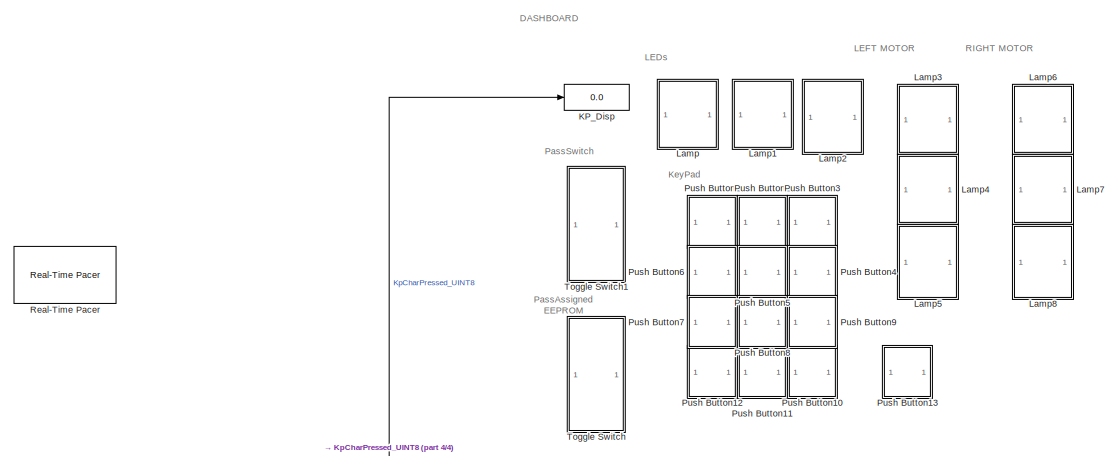
[diagram: root canvas - part 1/4, top center region]
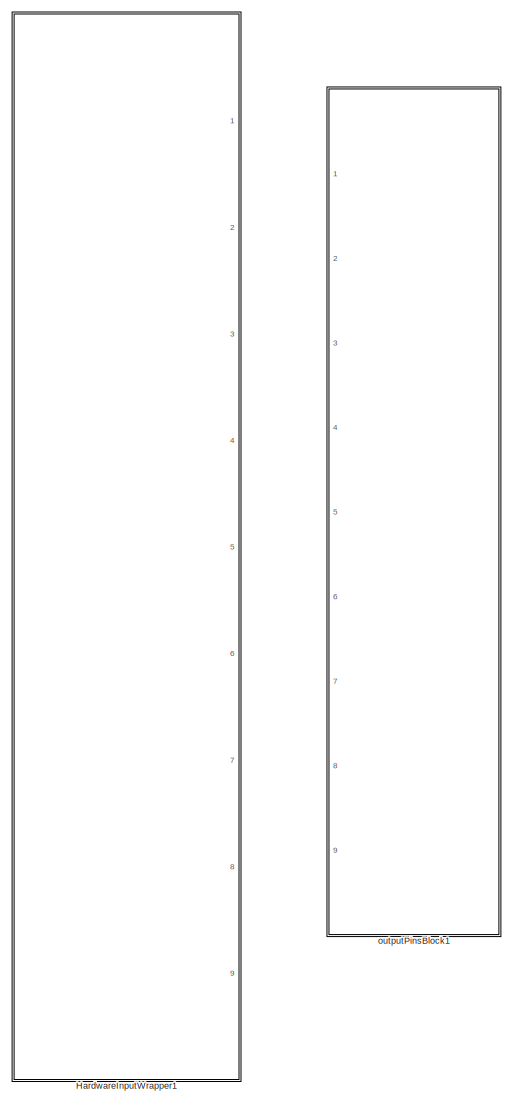
[diagram: root canvas - part 2/4, middle right region]
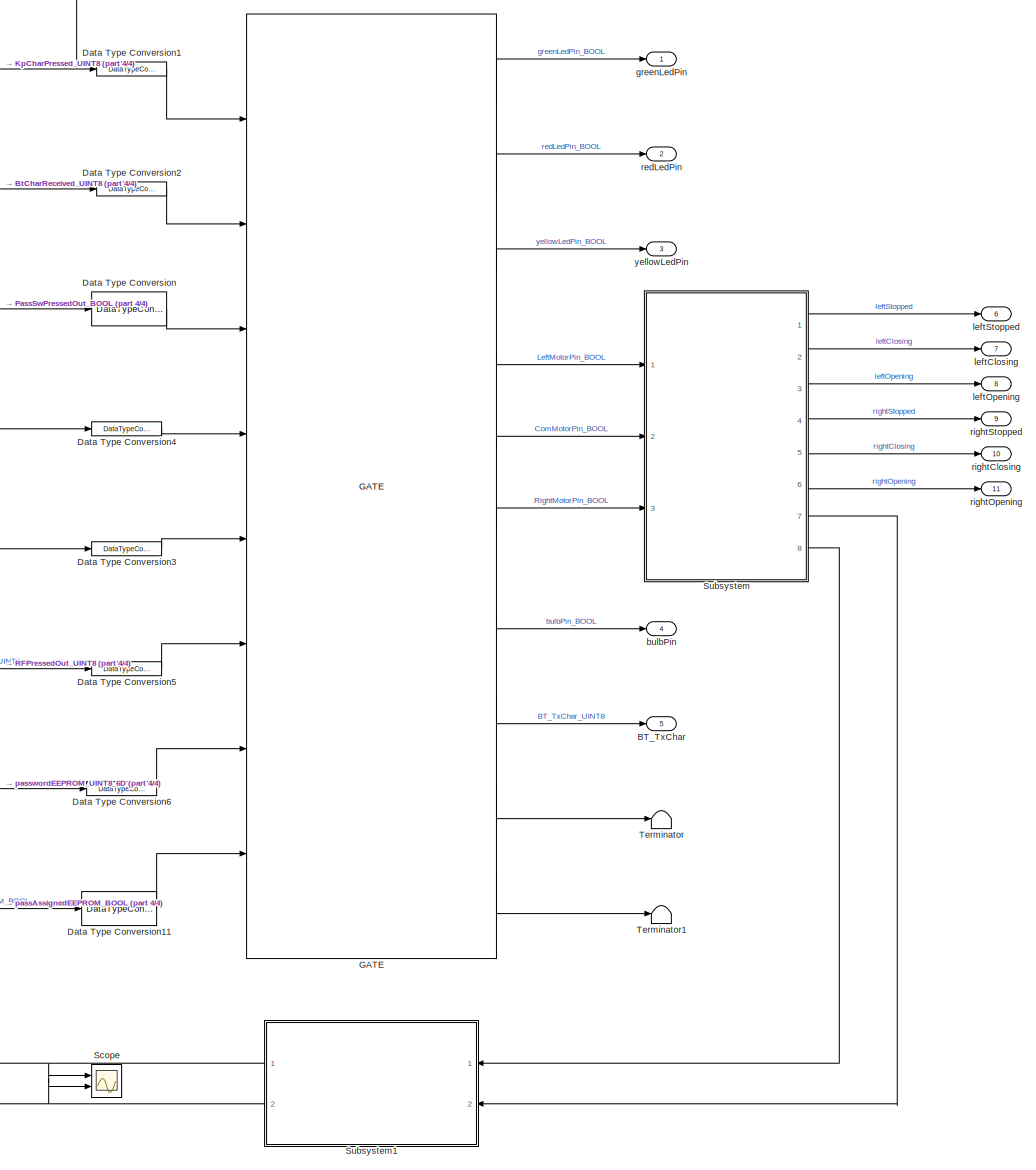
[diagram: root canvas - part 3/4, bottom center region]
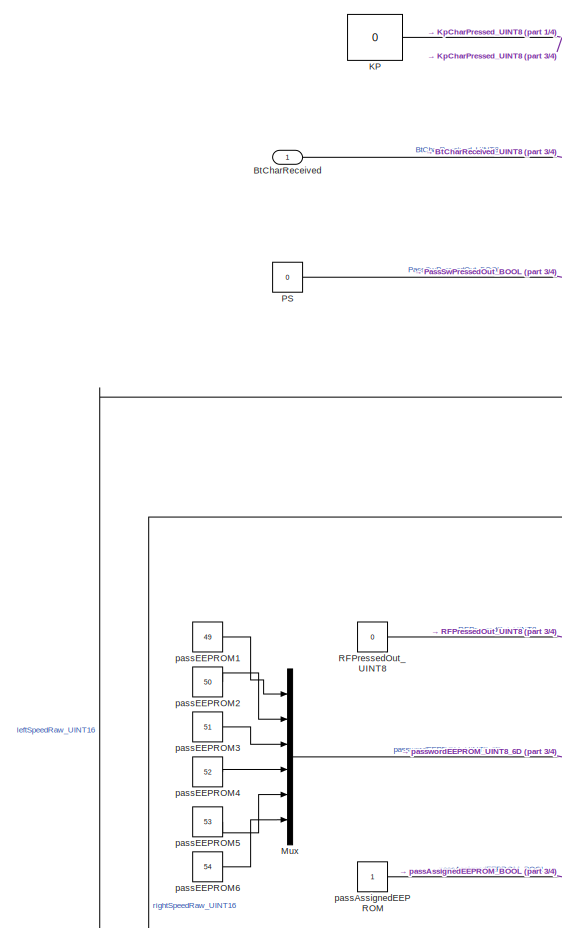
[diagram: root canvas - part 4/4, middle left region]
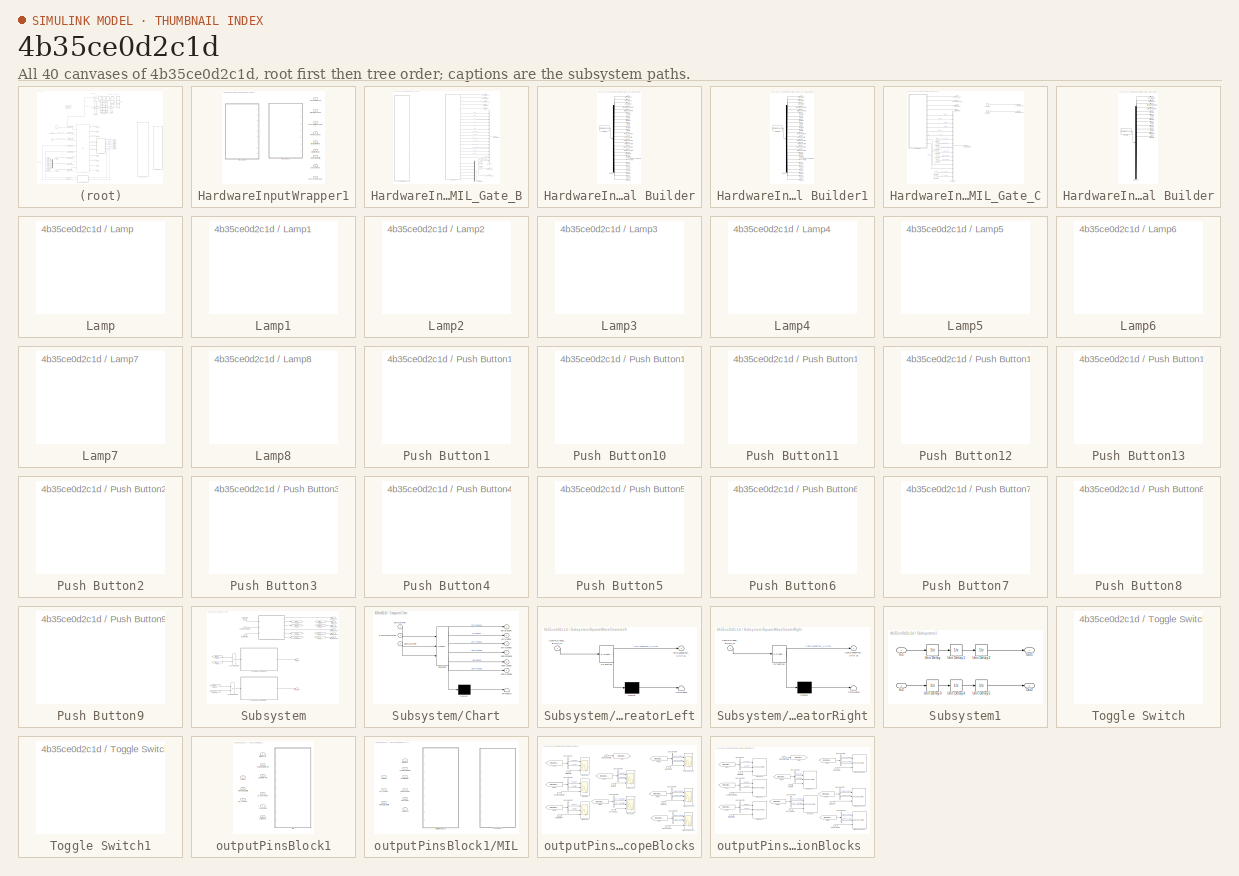
[diagram: thumbnail index - all 40 canvases of the model, root first then tree order]
MODEL slx_4b35ce0d2c1d
KIND model
CONFIG AbsTol = auto
CONFIG FixedStep = 0.001
CONFIG MaxStep = auto
CONFIG MinStep = auto
CONFIG RelTol = 1e-3
CONFIG SampleTimeConstraint = Unconstrained
CONFIG Solver = FixedStepDiscrete
CONFIG SolverMode = Auto
CONFIG SolverName = FixedStepDiscrete
CONFIG StartTime = 0.0
CONFIG StopTime = 120
BLOCK [Outport]  BT_TxChar
  IconDisplay = Port number
  Port = 5
BLOCK [Outport]  bulbPin
  IconDisplay = Port number
  Port = 4
BLOCK [Outport]  greenLedPin
  IconDisplay = Port number
BLOCK [Outport]  redLedPin
  IconDisplay = Port number
  Port = 2
BLOCK [Outport]  yellowLedPin
  IconDisplay = Port number
  Port = 3
BLOCK [Inport] BtCharReceived 
  IconDisplay = Port number
BLOCK [DataTypeConversion] Data Type Conversion
  OutDataTypeStr = boolean
  RndMeth = Floor
  SaturateOnIntegerOverflow = off
BLOCK [DataTypeConversion] Data Type Conversion1
  OutDataTypeStr = uint8
  RndMeth = Floor
  SaturateOnIntegerOverflow = off
BLOCK [DataTypeConversion] Data Type Conversion11
  OutDataTypeStr = boolean
  RndMeth = Floor
  SaturateOnIntegerOverflow = off
BLOCK [DataTypeConversion] Data Type Conversion2
  OutDataTypeStr = uint8
  RndMeth = Floor
  SaturateOnIntegerOverflow = off
BLOCK [DataTypeConversion] Data Type Conversion3
  OutDataTypeStr = uint16
  RndMeth = Floor
  SaturateOnIntegerOverflow = off
BLOCK [DataTypeConversion] Data Type Conversion4
  OutDataTypeStr = uint16
  RndMeth = Floor
  SaturateOnIntegerOverflow = off
BLOCK [DataTypeConversion] Data Type Conversion5
  OutDataTypeStr = uint8
  RndMeth = Floor
  SaturateOnIntegerOverflow = off
BLOCK [DataTypeConversion] Data Type Conversion6
  OutDataTypeStr = uint8
  RndMeth = Floor
  SaturateOnIntegerOverflow = off
BLOCK [Reference] GATE  REF=gate_V32_2016a_Lib_inf/GATE
  Ports = [8, 10]
  SourceBlock = gate_V32_2016a_Lib_inf/GATE
  SourceType = SubSystem
BLOCK [SubSystem] HardwareInputWrapper1
  Commented = on
  OverrideUsingVariant = MIL_VariantB
  Ports = [0, 9]
  RequestExecContextInheritance = off
  Variant = on
  VariantControl = Variant1
BLOCK [Outport] HardwareInputWrapper1/BtCharReceived
  IconDisplay = Port number
  Port = 2
BLOCK [Outport] HardwareInputWrapper1/KpCharPressed
  IconDisplay = Port number
BLOCK [SubSystem] HardwareInputWrapper1/MIL_Gate_B
  Ports = [0, 9]
  RequestExecContextInheritance = off
  Variant = off
  VariantControl = MIL_VariantB
BLOCK [Outport] HardwareInputWrapper1/MIL_Gate_B/BtCharReceived
  IconDisplay = Port number
  Port = 7
BLOCK [BusCreator] HardwareInputWrapper1/MIL_Gate_B/Bus Creator
  DisplayOption = bar
  InheritFromInputs = on
  Inputs = 16
  Ports = [16, 1]
BLOCK [Constant] HardwareInputWrapper1/MIL_Gate_B/Constant
  Value = 0
BLOCK [Constant] HardwareInputWrapper1/MIL_Gate_B/Constant1
  Value = 0
BLOCK [Constant] HardwareInputWrapper1/MIL_Gate_B/Constant2
  Value = 0
BLOCK [Outport] HardwareInputWrapper1/MIL_Gate_B/KpCharPressed
  IconDisplay = Port number
BLOCK [Mux] HardwareInputWrapper1/MIL_Gate_B/Mux
  DisplayOption = bar
  Inputs = 6
  Ports = [6, 1]
BLOCK [Outport] HardwareInputWrapper1/MIL_Gate_B/PassSwPressedOut
  IconDisplay = Port number
  Port = 2
BLOCK [Outport] HardwareInputWrapper1/MIL_Gate_B/RFPressedOut
  IconDisplay = Port number
  Port = 3
BLOCK [SubSystem] HardwareInputWrapper1/MIL_Gate_B/Signal Builder
  ClipboardFcn = sigbuilder_block('clipboard');
  CloseFcn = sigbuilder_block('close');
  ContinueFcn = sigbuilder_block('continue');
  CopyFcn = sigbuilder_block('copy');
  DeleteFcn = sigbuilder_block('delete');
  LoadFcn = sigbuilder_block('load');
  MaskHideContents = on
  ModelCloseFcn = sigbuilder_block('modelClose');
  NameChangeFcn = sigbuilder_block('namechange');
  OpenFcn = sigbuilder_block('open',[-1161 42 1012.8 468 ]);
  PauseFcn = sigbuilder_block('pause');
  Ports = [0, 26]
  PreSaveFcn = sigbuilder_block('preSave');
  RequestExecContextInheritance = off
  StartFcn = sigbuilder_block('start');
  StopFcn = sigbuilder_block('stop');
  Tag = STV Subsys
  Variant = off
BLOCK [Outport] HardwareInputWrapper1/MIL_Gate_B/Signal Builder/BulbMax
  IconDisplay = Port number
  Port = 18
  Tag = STV Outport
BLOCK [Outport] HardwareInputWrapper1/MIL_Gate_B/Signal Builder/BulbMin
  IconDisplay = Port number
  Port = 19
  Tag = STV Outport
BLOCK [Demux] HardwareInputWrapper1/MIL_Gate_B/Signal Builder/Demux
  Outputs = 26
  Ports = [1, 26]
  Tag = STV Demux
BLOCK [FromWorkspace] HardwareInputWrapper1/MIL_Gate_B/Signal Builder/FromWs
  OutputAfterFinalValue = Holding final value
  SampleTime = 0
  Tag = STV FromWs
  VariableName = tuvar
  ZeroCross = on
BLOCK [Outport] HardwareInputWrapper1/MIL_Gate_B/Signal Builder/GreenLedMax
  IconDisplay = Port number
  Port = 16
  Tag = STV Outport
BLOCK [Outport] HardwareInputWrapper1/MIL_Gate_B/Signal Builder/GreenLedMin
  IconDisplay = Port number
  Port = 17
  Tag = STV Outport
BLOCK [Outport] HardwareInputWrapper1/MIL_Gate_B/Signal Builder/Kp_input
  IconDisplay = Port number
  Tag = STV Outport
BLOCK [Outport] HardwareInputWrapper1/MIL_Gate_B/Signal Builder/MCMax
  IconDisplay = Port number
  Port = 10
  Tag = STV Outport
BLOCK [Outport] HardwareInputWrapper1/MIL_Gate_B/Signal Builder/MCMin
  IconDisplay = Port number
  Port = 11
  Tag = STV Outport
BLOCK [Outport] HardwareInputWrapper1/MIL_Gate_B/Signal Builder/MLMax
  IconDisplay = Port number
  Port = 6
  Tag = STV Outport
BLOCK [Outport] HardwareInputWrapper1/MIL_Gate_B/Signal Builder/MLMin
  IconDisplay = Port number
  Port = 7
  Tag = STV Outport
BLOCK [Outport] HardwareInputWrapper1/MIL_Gate_B/Signal Builder/MRMax
  IconDisplay = Port number
  Port = 8
  Tag = STV Outport
BLOCK [Outport] HardwareInputWrapper1/MIL_Gate_B/Signal Builder/MRMin
  IconDisplay = Port number
  Port = 9
  Tag = STV Outport
BLOCK [Outport] HardwareInputWrapper1/MIL_Gate_B/Signal Builder/Pass1
  IconDisplay = Port number
  Port = 21
  Tag = STV Outport
BLOCK [Outport] HardwareInputWrapper1/MIL_Gate_B/Signal Builder/Pass2
  IconDisplay = Port number
  Port = 22
  Tag = STV Outport
BLOCK [Outport] HardwareInputWrapper1/MIL_Gate_B/Signal Builder/Pass3
  IconDisplay = Port number
  Port = 23
  Tag = STV Outport
BLOCK [Outport] HardwareInputWrapper1/MIL_Gate_B/Signal Builder/Pass4
  IconDisplay = Port number
  Port = 24
  Tag = STV Outport
BLOCK [Outport] HardwareInputWrapper1/MIL_Gate_B/Signal Builder/Pass5
  IconDisplay = Port number
  Port = 25
  Tag = STV Outport
BLOCK [Outport] HardwareInputWrapper1/MIL_Gate_B/Signal Builder/Pass6
  IconDisplay = Port number
  Port = 26
  Tag = STV Outport
BLOCK [Outport] HardwareInputWrapper1/MIL_Gate_B/Signal Builder/PassAssignedEEPROM
  IconDisplay = Port number
  Port = 20
  Tag = STV Outport
BLOCK [Outport] HardwareInputWrapper1/MIL_Gate_B/Signal Builder/RF_input
  IconDisplay = Port number
  Port = 2
  Tag = STV Outport
BLOCK [Outport] HardwareInputWrapper1/MIL_Gate_B/Signal Builder/RedLedMax
  IconDisplay = Port number
  Port = 12
  Tag = STV Outport
BLOCK [Outport] HardwareInputWrapper1/MIL_Gate_B/Signal Builder/RedLedMin
  IconDisplay = Port number
  Port = 13
  Tag = STV Outport
BLOCK [Outport] HardwareInputWrapper1/MIL_Gate_B/Signal Builder/SW_input
  IconDisplay = Port number
  Port = 3
  Tag = STV Outport
BLOCK [Outport] HardwareInputWrapper1/MIL_Gate_B/Signal Builder/YellowLedMax
  IconDisplay = Port number
  Port = 14
  Tag = STV Outport
BLOCK [Outport] HardwareInputWrapper1/MIL_Gate_B/Signal Builder/YellowLedMin
  IconDisplay = Port number
  Port = 15
  Tag = STV Outport
BLOCK [Outport] HardwareInputWrapper1/MIL_Gate_B/Signal Builder/leftSpeedRaw
  IconDisplay = Port number
  Port = 5
  Tag = STV Outport
BLOCK [Outport] HardwareInputWrapper1/MIL_Gate_B/Signal Builder/rightSpeedRaw
  IconDisplay = Port number
  Port = 4
  Tag = STV Outport
BLOCK [SubSystem] HardwareInputWrapper1/MIL_Gate_B/Signal Builder1
  ClipboardFcn = sigbuilder_block('clipboard');
  CloseFcn = sigbuilder_block('close');
  Commented = on
  ContinueFcn = sigbuilder_block('continue');
  CopyFcn = sigbuilder_block('copy');
  DeleteFcn = sigbuilder_block('delete');
  LoadFcn = sigbuilder_block('load');
  MaskHideContents = on
  ModelCloseFcn = sigbuilder_block('modelClose');
  NameChangeFcn = sigbuilder_block('namechange');
  OpenFcn = sigbuilder_block('open',[-1139.4 30 1012.8 507 ]);
  PauseFcn = sigbuilder_block('pause');
  Ports = [0, 26]
  PreSaveFcn = sigbuilder_block('preSave');
  RequestExecContextInheritance = off
  StartFcn = sigbuilder_block('start');
  StopFcn = sigbuilder_block('stop');
  Tag = STV Subsys
  Variant = off
BLOCK [Outport] HardwareInputWrapper1/MIL_Gate_B/Signal Builder1/BulbMax
  IconDisplay = Port number
  Port = 18
  Tag = STV Outport
BLOCK [Outport] HardwareInputWrapper1/MIL_Gate_B/Signal Builder1/BulbMin
  IconDisplay = Port number
  Port = 19
  Tag = STV Outport
BLOCK [Demux] HardwareInputWrapper1/MIL_Gate_B/Signal Builder1/Demux
  Outputs = 26
  Ports = [1, 26]
  Tag = STV Demux
BLOCK [FromWorkspace] HardwareInputWrapper1/MIL_Gate_B/Signal Builder1/FromWs
  OutputAfterFinalValue = Holding final value
  SampleTime = 0
  Tag = STV FromWs
  VariableName = tuvar
  ZeroCross = on
BLOCK [Outport] HardwareInputWrapper1/MIL_Gate_B/Signal Builder1/GreenLedMax
  IconDisplay = Port number
  Port = 16
  Tag = STV Outport
BLOCK [Outport] HardwareInputWrapper1/MIL_Gate_B/Signal Builder1/GreenLedMin
  IconDisplay = Port number
  Port = 17
  Tag = STV Outport
BLOCK [Outport] HardwareInputWrapper1/MIL_Gate_B/Signal Builder1/Kp_input
  IconDisplay = Port number
  Tag = STV Outport
BLOCK [Outport] HardwareInputWrapper1/MIL_Gate_B/Signal Builder1/MCMax
  IconDisplay = Port number
  Port = 10
  Tag = STV Outport
BLOCK [Outport] HardwareInputWrapper1/MIL_Gate_B/Signal Builder1/MCMin
  IconDisplay = Port number
  Port = 11
  Tag = STV Outport
BLOCK [Outport] HardwareInputWrapper1/MIL_Gate_B/Signal Builder1/MLMax
  IconDisplay = Port number
  Port = 6
  Tag = STV Outport
BLOCK [Outport] HardwareInputWrapper1/MIL_Gate_B/Signal Builder1/MLMin
  IconDisplay = Port number
  Port = 7
  Tag = STV Outport
BLOCK [Outport] HardwareInputWrapper1/MIL_Gate_B/Signal Builder1/MRMax
  IconDisplay = Port number
  Port = 8
  Tag = STV Outport
BLOCK [Outport] HardwareInputWrapper1/MIL_Gate_B/Signal Builder1/MRMin
  IconDisplay = Port number
  Port = 9
  Tag = STV Outport
BLOCK [Outport] HardwareInputWrapper1/MIL_Gate_B/Signal Builder1/Pass1
  IconDisplay = Port number
  Port = 21
  Tag = STV Outport
BLOCK [Outport] HardwareInputWrapper1/MIL_Gate_B/Signal Builder1/Pass2
  IconDisplay = Port number
  Port = 22
  Tag = STV Outport
BLOCK [Outport] HardwareInputWrapper1/MIL_Gate_B/Signal Builder1/Pass3
  IconDisplay = Port number
  Port = 23
  Tag = STV Outport
BLOCK [Outport] HardwareInputWrapper1/MIL_Gate_B/Signal Builder1/Pass4
  IconDisplay = Port number
  Port = 24
  Tag = STV Outport
BLOCK [Outport] HardwareInputWrapper1/MIL_Gate_B/Signal Builder1/Pass5
  IconDisplay = Port number
  Port = 25
  Tag = STV Outport
BLOCK [Outport] HardwareInputWrapper1/MIL_Gate_B/Signal Builder1/Pass6
  IconDisplay = Port number
  Port = 26
  Tag = STV Outport
BLOCK [Outport] HardwareInputWrapper1/MIL_Gate_B/Signal Builder1/PassAssignedEEPROM
  IconDisplay = Port number
  Port = 20
  Tag = STV Outport
BLOCK [Outport] HardwareInputWrapper1/MIL_Gate_B/Signal Builder1/RF_input
  IconDisplay = Port number
  Port = 2
  Tag = STV Outport
BLOCK [Outport] HardwareInputWrapper1/MIL_Gate_B/Signal Builder1/RedLedMax
  IconDisplay = Port number
  Port = 12
  Tag = STV Outport
BLOCK [Outport] HardwareInputWrapper1/MIL_Gate_B/Signal Builder1/RedLedMin
  IconDisplay = Port number
  Port = 13
  Tag = STV Outport
BLOCK [Outport] HardwareInputWrapper1/MIL_Gate_B/Signal Builder1/SW_input
  IconDisplay = Port number
  Port = 3
  Tag = STV Outport
BLOCK [Outport] HardwareInputWrapper1/MIL_Gate_B/Signal Builder1/YellowLedMax
  IconDisplay = Port number
  Port = 14
  Tag = STV Outport
BLOCK [Outport] HardwareInputWrapper1/MIL_Gate_B/Signal Builder1/YellowLedMin
  IconDisplay = Port number
  Port = 15
  Tag = STV Outport
BLOCK [Outport] HardwareInputWrapper1/MIL_Gate_B/Signal Builder1/leftSpeedRaw
  IconDisplay = Port number
  Port = 5
  Tag = STV Outport
BLOCK [Outport] HardwareInputWrapper1/MIL_Gate_B/Signal Builder1/rightSpeedRaw
  IconDisplay = Port number
  Port = 4
  Tag = STV Outport
BLOCK [Outport] HardwareInputWrapper1/MIL_Gate_B/SimuOutputLimits
  IconDisplay = Port number
  Port = 6
BLOCK [Outport] HardwareInputWrapper1/MIL_Gate_B/leftCurrentRaw
  IconDisplay = Port number
  Port = 5
BLOCK [Outport] HardwareInputWrapper1/MIL_Gate_B/passAssignedOut
  IconDisplay = Port number
  Port = 9
BLOCK [Outport] HardwareInputWrapper1/MIL_Gate_B/passwordOut
  IconDisplay = Port number
  Port = 8
BLOCK [Outport] HardwareInputWrapper1/MIL_Gate_B/rightCurrentRaw
  IconDisplay = Port number
  Port = 4
BLOCK [SubSystem] HardwareInputWrapper1/MIL_Gate_C
  Ports = [0, 7]
  RequestExecContextInheritance = off
  Variant = off
  VariantControl = MIL_VariantC
BLOCK [Outport] HardwareInputWrapper1/MIL_Gate_C/BtCharReceived
  IconDisplay = Port number
  Port = 2
BLOCK [BusCreator] HardwareInputWrapper1/MIL_Gate_C/Bus Creator
  DisplayOption = bar
  InheritFromInputs = on
  Inputs = 16
  Ports = [16, 1]
BLOCK [Constant] HardwareInputWrapper1/MIL_Gate_C/Constant
  Value = 0
BLOCK [Constant] HardwareInputWrapper1/MIL_Gate_C/Constant1
  Value = 0
BLOCK [Constant] HardwareInputWrapper1/MIL_Gate_C/Constant2
  Value = 0
BLOCK [Constant] HardwareInputWrapper1/MIL_Gate_C/Constant3
  Value = 0
BLOCK [Constant] HardwareInputWrapper1/MIL_Gate_C/Constant4
  Value = 0
BLOCK [Constant] HardwareInputWrapper1/MIL_Gate_C/Constant5
  Value = 0
BLOCK [Constant] HardwareInputWrapper1/MIL_Gate_C/Constant6
  Value = 0
BLOCK [Constant] HardwareInputWrapper1/MIL_Gate_C/Constant7
  Value = 0
BLOCK [Constant] HardwareInputWrapper1/MIL_Gate_C/Constant8
  Value = 0
BLOCK [Constant] HardwareInputWrapper1/MIL_Gate_C/Constant9
  Value = 0
BLOCK [Outport] HardwareInputWrapper1/MIL_Gate_C/KpCharPressed
  IconDisplay = Port number
BLOCK [Outport] HardwareInputWrapper1/MIL_Gate_C/PassSwPressedOut
  IconDisplay = Port number
  Port = 3
BLOCK [Outport] HardwareInputWrapper1/MIL_Gate_C/RFPressedOut
  IconDisplay = Port number
  Port = 4
BLOCK [SubSystem] HardwareInputWrapper1/MIL_Gate_C/Signal Builder
  ClipboardFcn = sigbuilder_block('clipboard');
  CloseFcn = sigbuilder_block('close');
  ContinueFcn = sigbuilder_block('continue');
  CopyFcn = sigbuilder_block('copy');
  DeleteFcn = sigbuilder_block('delete');
  LoadFcn = sigbuilder_block('load');
  MaskHideContents = on
  ModelCloseFcn = sigbuilder_block('modelClose');
  NameChangeFcn = sigbuilder_block('namechange');
  OpenFcn = sigbuilder_block('open',[6 6 1012.5 507 ]);
  PauseFcn = sigbuilder_block('pause');
  Ports = [0, 12]
  PreSaveFcn = sigbuilder_block('preSave');
  RequestExecContextInheritance = off
  StartFcn = sigbuilder_block('start');
  StopFcn = sigbuilder_block('stop');
  Tag = STV Subsys
  Variant = off
BLOCK [Outport] HardwareInputWrapper1/MIL_Gate_C/Signal Builder/BulbMax
  IconDisplay = Port number
  Port = 11
  Tag = STV Outport
BLOCK [Outport] HardwareInputWrapper1/MIL_Gate_C/Signal Builder/BulbMin
  IconDisplay = Port number
  Port = 12
  Tag = STV Outport
BLOCK [Demux] HardwareInputWrapper1/MIL_Gate_C/Signal Builder/Demux
  Outputs = 12
  Ports = [1, 12]
  Tag = STV Demux
BLOCK [FromWorkspace] HardwareInputWrapper1/MIL_Gate_C/Signal Builder/FromWs
  SampleTime = 0
  Tag = STV FromWs
  VariableName = tuvar
  ZeroCross = on
BLOCK [Outport] HardwareInputWrapper1/MIL_Gate_C/Signal Builder/MCMax
  IconDisplay = Port number
  Port = 9
  Tag = STV Outport
BLOCK [Outport] HardwareInputWrapper1/MIL_Gate_C/Signal Builder/MCMin
  IconDisplay = Port number
  Port = 10
  Tag = STV Outport
BLOCK [Outport] HardwareInputWrapper1/MIL_Gate_C/Signal Builder/MLMax
  IconDisplay = Port number
  Port = 5
  Tag = STV Outport
BLOCK [Outport] HardwareInputWrapper1/MIL_Gate_C/Signal Builder/MLMin
  IconDisplay = Port number
  Port = 6
  Tag = STV Outport
BLOCK [Outport] HardwareInputWrapper1/MIL_Gate_C/Signal Builder/MRMax
  IconDisplay = Port number
  Port = 7
  Tag = STV Outport
BLOCK [Outport] HardwareInputWrapper1/MIL_Gate_C/Signal Builder/MRMin
  IconDisplay = Port number
  Port = 8
  Tag = STV Outport
BLOCK [Outport] HardwareInputWrapper1/MIL_Gate_C/Signal Builder/RF_input
  IconDisplay = Port number
  Tag = STV Outport
BLOCK [Outport] HardwareInputWrapper1/MIL_Gate_C/Signal Builder/SW_input
  IconDisplay = Port number
  Port = 2
  Tag = STV Outport
BLOCK [Outport] HardwareInputWrapper1/MIL_Gate_C/Signal Builder/leftSpeedRaw
  IconDisplay = Port number
  Port = 4
  Tag = STV Outport
BLOCK [Outport] HardwareInputWrapper1/MIL_Gate_C/Signal Builder/rightSpeedRaw
  IconDisplay = Port number
  Port = 3
  Tag = STV Outport
BLOCK [Outport] HardwareInputWrapper1/MIL_Gate_C/SimuOutputLimits
  IconDisplay = Port number
  Port = 7
BLOCK [Outport] HardwareInputWrapper1/MIL_Gate_C/leftCurrentRaw
  IconDisplay = Port number
  Port = 6
BLOCK [Outport] HardwareInputWrapper1/MIL_Gate_C/rightCurrentRaw
  IconDisplay = Port number
  Port = 5
BLOCK [Outport] HardwareInputWrapper1/PassSwPressedOut
  IconDisplay = Port number
  Port = 3
BLOCK [Outport] HardwareInputWrapper1/RFPressedOut
  IconDisplay = Port number
  Port = 6
BLOCK [Outport] HardwareInputWrapper1/SimuOutputLimits
  IconDisplay = Port number
  Port = 9
BLOCK [Outport] HardwareInputWrapper1/leftCurrentRaw
  IconDisplay = Port number
  Port = 5
BLOCK [Outport] HardwareInputWrapper1/passAssignedOut
  IconDisplay = Port number
  Port = 8
BLOCK [Outport] HardwareInputWrapper1/passwordOut
  IconDisplay = Port number
  Port = 7
BLOCK [Outport] HardwareInputWrapper1/rightCurrentRaw
  IconDisplay = Port number
  Port = 4
BLOCK [Constant] KP
  SampleTime = -1
  Value = 0
BLOCK [Display] KP_Disp
  Decimation = 1
  Format = decimal (Stored Integer)
  Ports = [1]
BLOCK [SubSystem] Lamp
  DialogController = hmiCreateDDGDialog
  IsWebBlock = on
  MaskHideContents = on
  Ports = []
  RequestExecContextInheritance = off
  Variant = off
BLOCK [SubSystem] Lamp1
  DialogController = hmiCreateDDGDialog
  IsWebBlock = on
  MaskHideContents = on
  Ports = []
  RequestExecContextInheritance = off
  Variant = off
BLOCK [SubSystem] Lamp2
  DialogController = hmiCreateDDGDialog
  IsWebBlock = on
  MaskHideContents = on
  Ports = []
  RequestExecContextInheritance = off
  Variant = off
BLOCK [SubSystem] Lamp3
  DialogController = hmiCreateDDGDialog
  IsWebBlock = on
  MaskHideContents = on
  Ports = []
  RequestExecContextInheritance = off
  Variant = off
BLOCK [SubSystem] Lamp4
  DialogController = hmiCreateDDGDialog
  IsWebBlock = on
  MaskHideContents = on
  Ports = []
  RequestExecContextInheritance = off
  Variant = off
BLOCK [SubSystem] Lamp5
  DialogController = hmiCreateDDGDialog
  IsWebBlock = on
  MaskHideContents = on
  Ports = []
  RequestExecContextInheritance = off
  Variant = off
BLOCK [SubSystem] Lamp6
  DialogController = hmiCreateDDGDialog
  IsWebBlock = on
  MaskHideContents = on
  Ports = []
  RequestExecContextInheritance = off
  Variant = off
BLOCK [SubSystem] Lamp7
  DialogController = hmiCreateDDGDialog
  IsWebBlock = on
  MaskHideContents = on
  Ports = []
  RequestExecContextInheritance = off
  Variant = off
BLOCK [SubSystem] Lamp8
  DialogController = hmiCreateDDGDialog
  IsWebBlock = on
  MaskHideContents = on
  Ports = []
  RequestExecContextInheritance = off
  Variant = off
BLOCK [Mux] Mux
  DisplayOption = bar
  Inputs = 6
  Ports = [6, 1]
BLOCK [Constant] PS
  Value = 0
BLOCK [SubSystem] Push Button1
  DialogController = hmiCreateDDGDialog
  IsWebBlock = on
  Ports = []
  RequestExecContextInheritance = off
  Variant = off
BLOCK [SubSystem] Push Button10
  DialogController = hmiCreateDDGDialog
  IsWebBlock = on
  Ports = []
  RequestExecContextInheritance = off
  Variant = off
BLOCK [SubSystem] Push Button11
  DialogController = hmiCreateDDGDialog
  IsWebBlock = on
  Ports = []
  RequestExecContextInheritance = off
  Variant = off
BLOCK [SubSystem] Push Button12
  DialogController = hmiCreateDDGDialog
  IsWebBlock = on
  Ports = []
  RequestExecContextInheritance = off
  Variant = off
BLOCK [SubSystem] Push Button13
  DialogController = hmiCreateDDGDialog
  IsWebBlock = on
  Ports = []
  RequestExecContextInheritance = off
  Variant = off
BLOCK [SubSystem] Push Button2
  DialogController = hmiCreateDDGDialog
  IsWebBlock = on
  Ports = []
  RequestExecContextInheritance = off
  Variant = off
BLOCK [SubSystem] Push Button3
  DialogController = hmiCreateDDGDialog
  IsWebBlock = on
  Ports = []
  RequestExecContextInheritance = off
  Variant = off
BLOCK [SubSystem] Push Button4
  DialogController = hmiCreateDDGDialog
  IsWebBlock = on
  Ports = []
  RequestExecContextInheritance = off
  Variant = off
BLOCK [SubSystem] Push Button5
  DialogController = hmiCreateDDGDialog
  IsWebBlock = on
  Ports = []
  RequestExecContextInheritance = off
  Variant = off
BLOCK [SubSystem] Push Button6
  DialogController = hmiCreateDDGDialog
  IsWebBlock = on
  Ports = []
  RequestExecContextInheritance = off
  Variant = off
BLOCK [SubSystem] Push Button7
  DialogController = hmiCreateDDGDialog
  IsWebBlock = on
  Ports = []
  RequestExecContextInheritance = off
  Variant = off
BLOCK [SubSystem] Push Button8
  DialogController = hmiCreateDDGDialog
  IsWebBlock = on
  Ports = []
  RequestExecContextInheritance = off
  Variant = off
BLOCK [SubSystem] Push Button9
  DialogController = hmiCreateDDGDialog
  IsWebBlock = on
  Ports = []
  RequestExecContextInheritance = off
  Variant = off
BLOCK [Constant] RFPressedOut_UINT8
  Value = 0
BLOCK [Reference] Real-Time Pacer  REF=realtime_pacer_lib/Real-Time Pacer
  Ports = []
  SourceBlock = realtime_pacer_lib/Real-Time Pacer
  SourceType = RealTime_Pacer
BLOCK [Scope] Scope
  NumInputPorts = 2
  Ports = [2]
  ScopeSpecificationString = Simulink.scopes.TimeScopeBlockCfg('CurrentConfiguration', extmgr.ConfigurationSet(extmgr.Configuration('Core','General UI',true),extmgr.Configuration('Core','Source UI',true),extmgr.Configuration('Sources','WiredSimulink',true,'DataLoggingVariableName','ScopeData1'),extmgr.Configuration('Visuals','Time Domain',true,'SerializedDisplays',{struct('MinYLimReal','-127.875','MaxYLimReal','1150.875','YLa...<+1535ch>
BLOCK [SubSystem] Subsystem
  Ports = [3, 8]
  RequestExecContextInheritance = off
  Variant = off
BLOCK [SubSystem] Subsystem/Chart
  ErrorFcn = Stateflow.Translate.translate
  PermitHierarchicalResolution = ExplicitOnly
  Ports = [3, 6]
  RequestExecContextInheritance = off
  SFBlockType = Chart
  TreatAsAtomicUnit = on
  Variant = off
BLOCK [Demux] Subsystem/Chart/ Demux 
  Outputs = 1
  Ports = [1, 1]
BLOCK [S-Function] Subsystem/Chart/ SFunction 
  EnableBusSupport = on
  FunctionName = sf_sfun
  PortCounts = [3 7]
  Ports = [3, 7]
  SFunctionDeploymentMode = off
  Tag = Stateflow S-Function TestHarness_inf 3
BLOCK [Terminator] Subsystem/Chart/ Terminator 
BLOCK [Inport] Subsystem/Chart/CommonMotorPin
  IconDisplay = Port number
  Port = 2
BLOCK [Outport] Subsystem/Chart/leftClosing
  IconDisplay = Port number
  Port = 2
BLOCK [Inport] Subsystem/Chart/leftMotorPin
  IconDisplay = Port number
BLOCK [Outport] Subsystem/Chart/leftOpening
  IconDisplay = Port number
  Port = 3
BLOCK [Outport] Subsystem/Chart/leftStopped
  IconDisplay = Port number
BLOCK [Outport] Subsystem/Chart/rightClosing
  IconDisplay = Port number
  Port = 5
BLOCK [Inport] Subsystem/Chart/rightMotorPin
  IconDisplay = Port number
  Port = 3
BLOCK [Outport] Subsystem/Chart/rightOpening
  IconDisplay = Port number
  Port = 6
BLOCK [Outport] Subsystem/Chart/rightStopped
  IconDisplay = Port number
  Port = 4
BLOCK [Inport] Subsystem/CommonMotorPin
  IconDisplay = Port number
  Port = 2
BLOCK [From] Subsystem/From1
  GotoTag = leftClosing
BLOCK [From] Subsystem/From10
  GotoTag = rightClosing
BLOCK [From] Subsystem/From11
  GotoTag = rightOpening
BLOCK [From] Subsystem/From2
  GotoTag = leftOpening
BLOCK [From] Subsystem/From4
  GotoTag = rightClosing
BLOCK [From] Subsystem/From5
  GotoTag = rightOpening
BLOCK [From] Subsystem/From7
  GotoTag = leftClosing
BLOCK [From] Subsystem/From8
  GotoTag = leftOpening
BLOCK [Goto] Subsystem/Goto1
  GotoTag = leftClosing
BLOCK [Goto] Subsystem/Goto2
  GotoTag = leftOpening
BLOCK [Goto] Subsystem/Goto4
  GotoTag = rightClosing
BLOCK [Goto] Subsystem/Goto5
  GotoTag = rightOpening
BLOCK [Inport] Subsystem/LeftMotorPin
  IconDisplay = Port number
BLOCK [Logic] Subsystem/Logical Operator
  AllPortsSameDT = off
  Operator = OR
  OutDataTypeStr = boolean
  Ports = [2, 1]
BLOCK [Logic] Subsystem/Logical Operator1
  AllPortsSameDT = off
  Operator = OR
  OutDataTypeStr = boolean
  Ports = [2, 1]
BLOCK [SubSystem] Subsystem/SquareWaveCreatorLeft
  ErrorFcn = Stateflow.Translate.translate
  PermitHierarchicalResolution = ExplicitOnly
  Ports = [1, 1]
  RequestExecContextInheritance = off
  SFBlockType = Chart
  TreatAsAtomicUnit = on
  Variant = off
BLOCK [Demux] Subsystem/SquareWaveCreatorLeft/ Demux 
  Outputs = 1
  Ports = [1, 1]
BLOCK [S-Function] Subsystem/SquareWaveCreatorLeft/ SFunction 
  EnableBusSupport = on
  FunctionName = sf_sfun
  PortCounts = [1 2]
  Ports = [1, 2]
  SFunctionDeploymentMode = off
  Tag = Stateflow S-Function TestHarness_inf 9
BLOCK [Terminator] Subsystem/SquareWaveCreatorLeft/ Terminator 
BLOCK [Inport] Subsystem/SquareWaveCreatorLeft/ControlSignal_BOOL_in
  IconDisplay = Port number
BLOCK [Outport] Subsystem/SquareWaveCreatorLeft/leftSpeedRaw_UINT16
  IconDisplay = Port number
BLOCK [SubSystem] Subsystem/SquareWaveCreatorRight
  ErrorFcn = Stateflow.Translate.translate
  PermitHierarchicalResolution = ExplicitOnly
  Ports = [1, 1]
  RequestExecContextInheritance = off
  SFBlockType = Chart
  TreatAsAtomicUnit = on
  Variant = off
BLOCK [Demux] Subsystem/SquareWaveCreatorRight/ Demux 
  Outputs = 1
  Ports = [1, 1]
BLOCK [S-Function] Subsystem/SquareWaveCreatorRight/ SFunction 
  EnableBusSupport = on
  FunctionName = sf_sfun
  PortCounts = [1 2]
  Ports = [1, 2]
  SFunctionDeploymentMode = off
  Tag = Stateflow S-Function TestHarness_inf 1
BLOCK [Terminator] Subsystem/SquareWaveCreatorRight/ Terminator 
BLOCK [Inport] Subsystem/SquareWaveCreatorRight/ControlSignal_BOOL_in
  IconDisplay = Port number
BLOCK [Outport] Subsystem/SquareWaveCreatorRight/rightSpeedRaw_UINT16
  IconDisplay = Port number
BLOCK [Outport] Subsystem/leftClosing
  IconDisplay = Port number
  Port = 2
BLOCK [Outport] Subsystem/leftCurr
  IconDisplay = Port number
  Port = 8
BLOCK [Outport] Subsystem/leftOpening
  IconDisplay = Port number
  Port = 3
BLOCK [Outport] Subsystem/leftStopped
  IconDisplay = Port number
BLOCK [Outport] Subsystem/rightClosing
  IconDisplay = Port number
  Port = 5
BLOCK [Outport] Subsystem/rightCurr
  IconDisplay = Port number
  Port = 7
BLOCK [Inport] Subsystem/rightMotorPin
  IconDisplay = Port number
  Port = 3
BLOCK [Outport] Subsystem/rightOpening
  IconDisplay = Port number
  Port = 6
BLOCK [Outport] Subsystem/rightStopped
  IconDisplay = Port number
  Port = 4
BLOCK [SubSystem] Subsystem1
  Ports = [2, 2]
  RequestExecContextInheritance = off
  Variant = off
BLOCK [Inport] Subsystem1/In1
  IconDisplay = Port number
BLOCK [Inport] Subsystem1/In2
  IconDisplay = Port number
  Port = 2
BLOCK [Outport] Subsystem1/Out1
  IconDisplay = Port number
BLOCK [Outport] Subsystem1/Out2
  IconDisplay = Port number
  Port = 2
BLOCK [UnitDelay] Subsystem1/Unit Delay
  InputProcessing = Elements as channels (sample based)
  SampleTime = -1
BLOCK [UnitDelay] Subsystem1/Unit Delay1
  InputProcessing = Elements as channels (sample based)
  SampleTime = -1
BLOCK [UnitDelay] Subsystem1/Unit Delay2
  InputProcessing = Elements as channels (sample based)
  SampleTime = -1
BLOCK [UnitDelay] Subsystem1/Unit Delay3
  InputProcessing = Elements as channels (sample based)
  SampleTime = -1
BLOCK [UnitDelay] Subsystem1/Unit Delay4
  InputProcessing = Elements as channels (sample based)
  SampleTime = -1
BLOCK [UnitDelay] Subsystem1/Unit Delay5
  InputProcessing = Elements as channels (sample based)
  SampleTime = -1
BLOCK [Terminator] Terminator
BLOCK [Terminator] Terminator1
BLOCK [SubSystem] Toggle Switch
  DialogController = hmiCreateDDGDialog
  IsWebBlock = on
  MaskHideContents = on
  Ports = []
  RequestExecContextInheritance = off
  Variant = off
BLOCK [SubSystem] Toggle Switch1
  DialogController = hmiCreateDDGDialog
  IsWebBlock = on
  MaskHideContents = on
  Ports = []
  RequestExecContextInheritance = off
  Variant = off
BLOCK [Outport] leftClosing
  IconDisplay = Port number
  Port = 7
BLOCK [Outport] leftOpening
  IconDisplay = Port number
  Port = 8
BLOCK [Outport] leftStopped
  IconDisplay = Port number
  Port = 6
BLOCK [SubSystem] outputPinsBlock1
  Commented = on
  OverrideUsingVariant = MIL_ALL_Variants
  Ports = [9]
  RequestExecContextInheritance = off
  Variant = on
  VariantControl = Variant1
BLOCK [Inport] outputPinsBlock1/BT_TxChar
  IconDisplay = Port number
  Port = 8
BLOCK [SubSystem] outputPinsBlock1/MIL
  OverrideUsingVariant = VisualOutputs
  Ports = [9]
  RequestExecContextInheritance = off
  Variant = on
  VariantControl = MIL_ALL_Variants
BLOCK [Inport] outputPinsBlock1/MIL/BT_TxChar
  IconDisplay = Port number
  Port = 8
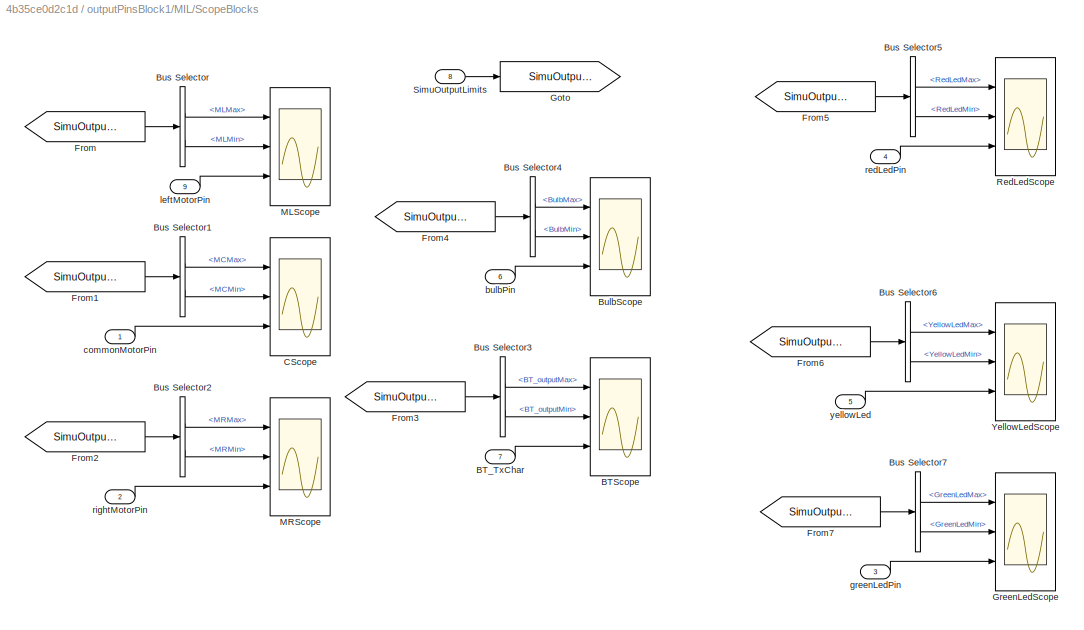
BLOCK [SubSystem] outputPinsBlock1/MIL/ScopeBlocks
  Ports = [9]
  RequestExecContextInheritance = off
  Variant = off
  VariantControl = VisualOutputs
BLOCK [Scope] outputPinsBlock1/MIL/ScopeBlocks/BTScope
  NumInputPorts = 3
  Ports = [3]
  ScopeSpecificationString = Simulink.scopes.TimeScopeBlockCfg('CurrentConfiguration', extmgr.ConfigurationSet(extmgr.Configuration('Core','General UI',true),extmgr.Configuration('Core','Source UI',true),extmgr.Configuration('Sources','WiredSimulink',true,'SampleTime','0.001'),extmgr.Configuration('Visuals','Time Domain',true,'SerializedDisplays',{struct('MinYLimReal','-12.5','MaxYLimReal','111.5','YLabelReal','','MinYLimMag'...<+1453ch>
BLOCK [Inport] outputPinsBlock1/MIL/ScopeBlocks/BT_TxChar
  IconDisplay = Port number
  Port = 7
BLOCK [Scope] outputPinsBlock1/MIL/ScopeBlocks/BulbScope
  NumInputPorts = 3
  Ports = [3]
  ScopeSpecificationString = Simulink.scopes.TimeScopeBlockCfg('CurrentConfiguration', extmgr.ConfigurationSet(extmgr.Configuration('Core','General UI',true),extmgr.Configuration('Core','Source UI',true),extmgr.Configuration('Sources','WiredSimulink',true,'SampleTime','0.001','DataLoggingVariableName','ScopeData2'),extmgr.Configuration('Visuals','Time Domain',true,'SerializedDisplays',{struct('MinYLimReal','-0.25','MaxYLimRea...<+1487ch>
BLOCK [BusSelector] outputPinsBlock1/MIL/ScopeBlocks/Bus Selector
  OutputSignals = MLMax,MLMin
  Ports = [1, 2]
BLOCK [BusSelector] outputPinsBlock1/MIL/ScopeBlocks/Bus Selector1
  OutputSignals = MCMax,MCMin
  Ports = [1, 2]
BLOCK [BusSelector] outputPinsBlock1/MIL/ScopeBlocks/Bus Selector2
  OutputSignals = MRMax,MRMin
  Ports = [1, 2]
BLOCK [BusSelector] outputPinsBlock1/MIL/ScopeBlocks/Bus Selector3
  OutputSignals = BT_outputMax,BT_outputMin
  Ports = [1, 2]
BLOCK [BusSelector] outputPinsBlock1/MIL/ScopeBlocks/Bus Selector4
  OutputSignals = BulbMax,BulbMin
  Ports = [1, 2]
BLOCK [BusSelector] outputPinsBlock1/MIL/ScopeBlocks/Bus Selector5
  OutputSignals = RedLedMax,RedLedMin
  Ports = [1, 2]
BLOCK [BusSelector] outputPinsBlock1/MIL/ScopeBlocks/Bus Selector6
  OutputSignals = YellowLedMax,YellowLedMin
  Ports = [1, 2]
BLOCK [BusSelector] outputPinsBlock1/MIL/ScopeBlocks/Bus Selector7
  OutputSignals = GreenLedMax,GreenLedMin
  Ports = [1, 2]
BLOCK [Scope] outputPinsBlock1/MIL/ScopeBlocks/CScope
  NumInputPorts = 3
  Ports = [3]
  ScopeSpecificationString = Simulink.scopes.TimeScopeBlockCfg('CurrentConfiguration', extmgr.ConfigurationSet(extmgr.Configuration('Core','General UI',true),extmgr.Configuration('Core','Source UI',true),extmgr.Configuration('Sources','WiredSimulink',true,'SampleTime','0.001','DataLoggingVariableName','ScopeData2'),extmgr.Configuration('Visuals','Time Domain',true,'SerializedDisplays',{struct('MinYLimReal','-0.25','MaxYLimRea...<+1466ch>
BLOCK [From] outputPinsBlock1/MIL/ScopeBlocks/From
  GotoTag = SimuOutputLimits
BLOCK [From] outputPinsBlock1/MIL/ScopeBlocks/From1
  GotoTag = SimuOutputLimits
BLOCK [From] outputPinsBlock1/MIL/ScopeBlocks/From2
  GotoTag = SimuOutputLimits
BLOCK [From] outputPinsBlock1/MIL/ScopeBlocks/From3
  GotoTag = SimuOutputLimits
BLOCK [From] outputPinsBlock1/MIL/ScopeBlocks/From4
  GotoTag = SimuOutputLimits
BLOCK [From] outputPinsBlock1/MIL/ScopeBlocks/From5
  GotoTag = SimuOutputLimits
BLOCK [From] outputPinsBlock1/MIL/ScopeBlocks/From6
  GotoTag = SimuOutputLimits
BLOCK [From] outputPinsBlock1/MIL/ScopeBlocks/From7
  GotoTag = SimuOutputLimits
BLOCK [Goto] outputPinsBlock1/MIL/ScopeBlocks/Goto
  GotoTag = SimuOutputLimits
BLOCK [Scope] outputPinsBlock1/MIL/ScopeBlocks/GreenLedScope
  NumInputPorts = 3
  Ports = [3]
  ScopeSpecificationString = Simulink.scopes.TimeScopeBlockCfg('CurrentConfiguration', extmgr.ConfigurationSet(extmgr.Configuration('Core','General UI',true),extmgr.Configuration('Core','Source UI',true),extmgr.Configuration('Sources','WiredSimulink',true,'SampleTime','0.001','DataLoggingVariableName','ScopeData1'),extmgr.Configuration('Visuals','Time Domain',true,'SerializedDisplays',{struct('MinYLimReal','-0.25','MaxYLimRea...<+1470ch>
BLOCK [Scope] outputPinsBlock1/MIL/ScopeBlocks/MLScope
  NumInputPorts = 3
  Ports = [3]
  ScopeSpecificationString = Simulink.scopes.TimeScopeBlockCfg('CurrentConfiguration', extmgr.ConfigurationSet(extmgr.Configuration('Core','General UI',true),extmgr.Configuration('Core','Source UI',true),extmgr.Configuration('Sources','WiredSimulink',true,'SampleTime','0.001'),extmgr.Configuration('Visuals','Time Domain',true,'SerializedDisplays',{struct('MinYLimReal','-0.25','MaxYLimReal','1.25','YLabelReal','','MinYLimMag',...<+1426ch>
BLOCK [Scope] outputPinsBlock1/MIL/ScopeBlocks/MRScope
  NumInputPorts = 3
  Ports = [3]
  ScopeSpecificationString = Simulink.scopes.TimeScopeBlockCfg('CurrentConfiguration', extmgr.ConfigurationSet(extmgr.Configuration('Core','General UI',true),extmgr.Configuration('Core','Source UI',true),extmgr.Configuration('Sources','WiredSimulink',true,'SampleTime','0.001','DataLoggingVariableName','ScopeData1'),extmgr.Configuration('Visuals','Time Domain',true,'SerializedDisplays',{struct('MinYLimReal','-0.25','MaxYLimRea...<+1493ch>
BLOCK [Scope] outputPinsBlock1/MIL/ScopeBlocks/RedLedScope
  NumInputPorts = 3
  Ports = [3]
  ScopeSpecificationString = Simulink.scopes.TimeScopeBlockCfg('CurrentConfiguration', extmgr.ConfigurationSet(extmgr.Configuration('Core','General UI',true),extmgr.Configuration('Core','Source UI',true),extmgr.Configuration('Sources','WiredSimulink',true,'SampleTime','0.001','DataLoggingVariableName','ScopeData3'),extmgr.Configuration('Visuals','Time Domain',true,'SerializedDisplays',{struct('MinYLimReal','-0.25','MaxYLimRea...<+1467ch>
BLOCK [Inport] outputPinsBlock1/MIL/ScopeBlocks/SimuOutputLimits
  IconDisplay = Port number
  Port = 8
BLOCK [Scope] outputPinsBlock1/MIL/ScopeBlocks/YellowLedScope
  NumInputPorts = 3
  Ports = [3]
  ScopeSpecificationString = Simulink.scopes.TimeScopeBlockCfg('CurrentConfiguration', extmgr.ConfigurationSet(extmgr.Configuration('Core','General UI',true),extmgr.Configuration('Core','Source UI',true),extmgr.Configuration('Sources','WiredSimulink',true,'SampleTime','0.001'),extmgr.Configuration('Visuals','Time Domain',true,'SerializedDisplays',{struct('MinYLimReal','-0.25','MaxYLimReal','1.25','YLabelReal','','MinYLimMag',...<+1426ch>
BLOCK [Inport] outputPinsBlock1/MIL/ScopeBlocks/bulbPin
  IconDisplay = Port number
  Port = 6
BLOCK [Inport] outputPinsBlock1/MIL/ScopeBlocks/commonMotorPin
  IconDisplay = Port number
BLOCK [Inport] outputPinsBlock1/MIL/ScopeBlocks/greenLedPin
  IconDisplay = Port number
  Port = 3
BLOCK [Inport] outputPinsBlock1/MIL/ScopeBlocks/leftMotorPin
  IconDisplay = Port number
  Port = 9
BLOCK [Inport] outputPinsBlock1/MIL/ScopeBlocks/redLedPin
  IconDisplay = Port number
  Port = 4
BLOCK [Inport] outputPinsBlock1/MIL/ScopeBlocks/rightMotorPin
  IconDisplay = Port number
  Port = 2
BLOCK [Inport] outputPinsBlock1/MIL/ScopeBlocks/yellowLed
  IconDisplay = Port number
  Port = 5
BLOCK [Inport] outputPinsBlock1/MIL/SimuOutputLimits
  IconDisplay = Port number
  Port = 9
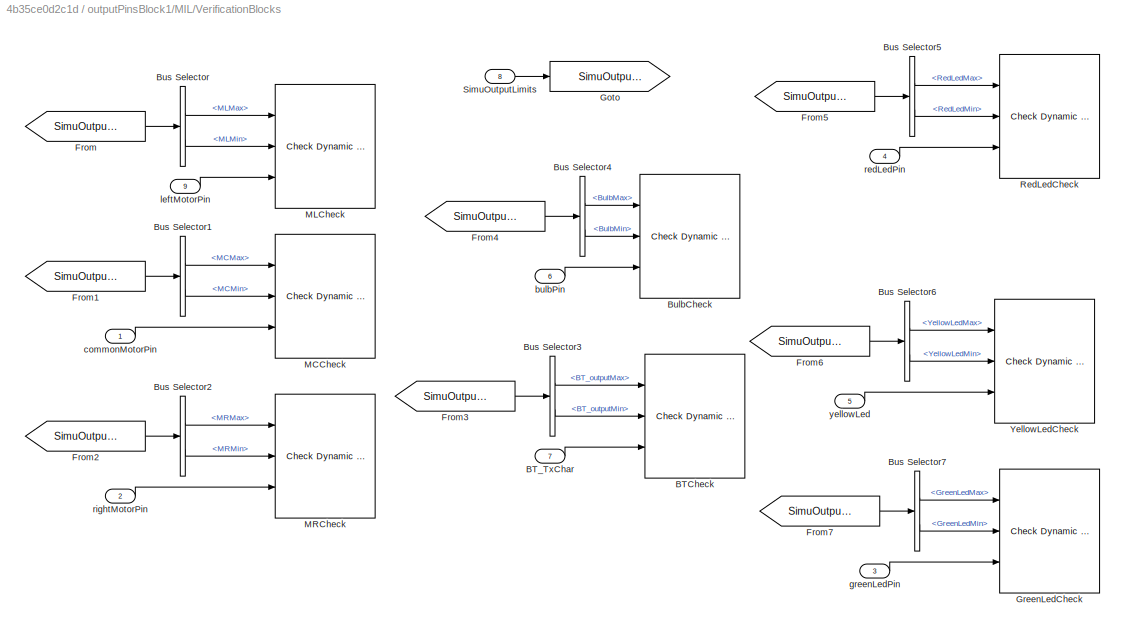
BLOCK [SubSystem] outputPinsBlock1/MIL/VerificationBlocks 
  Ports = [9]
  RequestExecContextInheritance = off
  Variant = off
  VariantControl = VVOutputs
BLOCK [Reference] outputPinsBlock1/MIL/VerificationBlocks /BTCheck  REF=simulink/Model
Verification/Check 
Dynamic Range
  Description = min < sig < max
  Ports = [3]
  SourceBlock = simulink/Model\nVerification/Check \nDynamic Range
  SourceType = Checks_DRange
BLOCK [Inport] outputPinsBlock1/MIL/VerificationBlocks /BT_TxChar
  IconDisplay = Port number
  Port = 7
BLOCK [Reference] outputPinsBlock1/MIL/VerificationBlocks /BulbCheck  REF=simulink/Model
Verification/Check 
Dynamic Range
  Description = min < sig < max
  Ports = [3]
  SourceBlock = simulink/Model\nVerification/Check \nDynamic Range
  SourceType = Checks_DRange
BLOCK [BusSelector] outputPinsBlock1/MIL/VerificationBlocks /Bus Selector
  OutputSignals = MLMax,MLMin
  Ports = [1, 2]
BLOCK [BusSelector] outputPinsBlock1/MIL/VerificationBlocks /Bus Selector1
  OutputSignals = MCMax,MCMin
  Ports = [1, 2]
BLOCK [BusSelector] outputPinsBlock1/MIL/VerificationBlocks /Bus Selector2
  OutputSignals = MRMax,MRMin
  Ports = [1, 2]
BLOCK [BusSelector] outputPinsBlock1/MIL/VerificationBlocks /Bus Selector3
  OutputSignals = BT_outputMax,BT_outputMin
  Ports = [1, 2]
BLOCK [BusSelector] outputPinsBlock1/MIL/VerificationBlocks /Bus Selector4
  OutputSignals = BulbMax,BulbMin
  Ports = [1, 2]
BLOCK [BusSelector] outputPinsBlock1/MIL/VerificationBlocks /Bus Selector5
  OutputSignals = RedLedMax,RedLedMin
  Ports = [1, 2]
BLOCK [BusSelector] outputPinsBlock1/MIL/VerificationBlocks /Bus Selector6
  OutputSignals = YellowLedMax,YellowLedMin
  Ports = [1, 2]
BLOCK [BusSelector] outputPinsBlock1/MIL/VerificationBlocks /Bus Selector7
  OutputSignals = GreenLedMax,GreenLedMin
  Ports = [1, 2]
BLOCK [From] outputPinsBlock1/MIL/VerificationBlocks /From
  GotoTag = SimuOutputLimits
BLOCK [From] outputPinsBlock1/MIL/VerificationBlocks /From1
  GotoTag = SimuOutputLimits
BLOCK [From] outputPinsBlock1/MIL/VerificationBlocks /From2
  GotoTag = SimuOutputLimits
BLOCK [From] outputPinsBlock1/MIL/VerificationBlocks /From3
  GotoTag = SimuOutputLimits
BLOCK [From] outputPinsBlock1/MIL/VerificationBlocks /From4
  GotoTag = SimuOutputLimits
BLOCK [From] outputPinsBlock1/MIL/VerificationBlocks /From5
  GotoTag = SimuOutputLimits
BLOCK [From] outputPinsBlock1/MIL/VerificationBlocks /From6
  GotoTag = SimuOutputLimits
BLOCK [From] outputPinsBlock1/MIL/VerificationBlocks /From7
  GotoTag = SimuOutputLimits
BLOCK [Goto] outputPinsBlock1/MIL/VerificationBlocks /Goto
  GotoTag = SimuOutputLimits
BLOCK [Reference] outputPinsBlock1/MIL/VerificationBlocks /GreenLedCheck  REF=simulink/Model
Verification/Check 
Dynamic Range
  Description = min < sig < max
  Ports = [3]
  SourceBlock = simulink/Model\nVerification/Check \nDynamic Range
  SourceType = Checks_DRange
BLOCK [Reference] outputPinsBlock1/MIL/VerificationBlocks /MCCheck  REF=simulink/Model
Verification/Check 
Dynamic Range
  Description = min < sig < max
  Ports = [3]
  SourceBlock = simulink/Model\nVerification/Check \nDynamic Range
  SourceType = Checks_DRange
BLOCK [Reference] outputPinsBlock1/MIL/VerificationBlocks /MLCheck  REF=simulink/Model
Verification/Check 
Dynamic Range
  Description = min < sig < max
  Ports = [3]
  SourceBlock = simulink/Model\nVerification/Check \nDynamic Range
  SourceType = Checks_DRange
BLOCK [Reference] outputPinsBlock1/MIL/VerificationBlocks /MRCheck  REF=simulink/Model
Verification/Check 
Dynamic Range
  Description = min < sig < max
  Ports = [3]
  SourceBlock = simulink/Model\nVerification/Check \nDynamic Range
  SourceType = Checks_DRange
BLOCK [Reference] outputPinsBlock1/MIL/VerificationBlocks /RedLedCheck  REF=simulink/Model
Verification/Check 
Dynamic Range
  Description = min < sig < max
  Ports = [3]
  SourceBlock = simulink/Model\nVerification/Check \nDynamic Range
  SourceType = Checks_DRange
BLOCK [Inport] outputPinsBlock1/MIL/VerificationBlocks /SimuOutputLimits
  IconDisplay = Port number
  Port = 8
BLOCK [Reference] outputPinsBlock1/MIL/VerificationBlocks /YellowLedCheck  REF=simulink/Model
Verification/Check 
Dynamic Range
  Description = min < sig < max
  Ports = [3]
  SourceBlock = simulink/Model\nVerification/Check \nDynamic Range
  SourceType = Checks_DRange
BLOCK [Inport] outputPinsBlock1/MIL/VerificationBlocks /bulbPin
  IconDisplay = Port number
  Port = 6
BLOCK [Inport] outputPinsBlock1/MIL/VerificationBlocks /commonMotorPin
  IconDisplay = Port number
BLOCK [Inport] outputPinsBlock1/MIL/VerificationBlocks /greenLedPin
  IconDisplay = Port number
  Port = 3
BLOCK [Inport] outputPinsBlock1/MIL/VerificationBlocks /leftMotorPin
  IconDisplay = Port number
  Port = 9
BLOCK [Inport] outputPinsBlock1/MIL/VerificationBlocks /redLedPin
  IconDisplay = Port number
  Port = 4
BLOCK [Inport] outputPinsBlock1/MIL/VerificationBlocks /rightMotorPin
  IconDisplay = Port number
  Port = 2
BLOCK [Inport] outputPinsBlock1/MIL/VerificationBlocks /yellowLed
  IconDisplay = Port number
  Port = 5
BLOCK [Inport] outputPinsBlock1/MIL/bulbPin
  IconDisplay = Port number
  Port = 7
BLOCK [Inport] outputPinsBlock1/MIL/commonMotorPin 
  IconDisplay = Port number
  Port = 2
BLOCK [Inport] outputPinsBlock1/MIL/greenLedPin
  IconDisplay = Port number
  Port = 4
BLOCK [Inport] outputPinsBlock1/MIL/leftMotorPin 
  IconDisplay = Port number
BLOCK [Inport] outputPinsBlock1/MIL/redLedPin
  IconDisplay = Port number
  Port = 5
BLOCK [Inport] outputPinsBlock1/MIL/rightMotorPin 
  IconDisplay = Port number
  Port = 3
BLOCK [Inport] outputPinsBlock1/MIL/yellowLed
  IconDisplay = Port number
  Port = 6
BLOCK [Inport] outputPinsBlock1/SimuOutputLimits
  IconDisplay = Port number
  Port = 9
BLOCK [Inport] outputPinsBlock1/bulbPin
  IconDisplay = Port number
  Port = 7
BLOCK [Inport] outputPinsBlock1/commonMotorPin
  IconDisplay = Port number
  Port = 5
BLOCK [Inport] outputPinsBlock1/greenLedPin
  IconDisplay = Port number
BLOCK [Inport] outputPinsBlock1/leftMotorPin
  IconDisplay = Port number
  Port = 4
BLOCK [Inport] outputPinsBlock1/redLedPin
  IconDisplay = Port number
  Port = 2
BLOCK [Inport] outputPinsBlock1/rightMotorPin
  IconDisplay = Port number
  Port = 6
BLOCK [Inport] outputPinsBlock1/yellowLed
  IconDisplay = Port number
  Port = 3
BLOCK [Constant] passAssignedEEPROM
BLOCK [Constant] passEEPROM1
  Value = 49
BLOCK [Constant] passEEPROM2
  Value = 50
BLOCK [Constant] passEEPROM3
  Value = 51
BLOCK [Constant] passEEPROM4
  Value = 52
BLOCK [Constant] passEEPROM5
  Value = 53
BLOCK [Constant] passEEPROM6
  Value = 54
BLOCK [Outport] rightClosing
  IconDisplay = Port number
  Port = 10
BLOCK [Outport] rightOpening
  IconDisplay = Port number
  Port = 11
BLOCK [Outport] rightStopped
  IconDisplay = Port number
  Port = 9
ANNOTATION (root): PassAssigned EEPROM
ANNOTATION (root): DASHBOARD
ANNOTATION (root): KeyPad
ANNOTATION (root): LEDs
ANNOTATION (root): LEFT MOTOR
ANNOTATION (root): PassSwitch
ANNOTATION (root): RIGHT MOTOR
LINE BtCharReceived :1 -> Data Type Conversion2:1
LINE Data Type Conversion11:1 -> GATE:8
LINE Data Type Conversion1:1 -> GATE:1
LINE Data Type Conversion2:1 -> GATE:2
LINE Data Type Conversion3:1 -> GATE:5
LINE Data Type Conversion4:1 -> GATE:4
LINE Data Type Conversion5:1 -> GATE:6
LINE Data Type Conversion6:1 -> GATE:7
LINE Data Type Conversion:1 -> GATE:3
LINE GATE:1 ->  greenLedPin:1
LINE GATE:10 -> Terminator1:1
LINE GATE:2 ->  redLedPin:1
LINE GATE:3 ->  yellowLedPin:1
LINE GATE:4 -> Subsystem:1
LINE GATE:5 -> Subsystem:2
LINE GATE:6 -> Subsystem:3
LINE GATE:7 ->  bulbPin:1
LINE GATE:8 ->  BT_TxChar:1
LINE GATE:9 -> Terminator:1
LINE HardwareInputWrapper1/MIL_Gate_B/Bus Creator:1 -> HardwareInputWrapper1/MIL_Gate_B/SimuOutputLimits:1
LINE HardwareInputWrapper1/MIL_Gate_B/Constant1:1 -> HardwareInputWrapper1/MIL_Gate_B/Bus Creator:16
LINE HardwareInputWrapper1/MIL_Gate_B/Constant2:1 -> HardwareInputWrapper1/MIL_Gate_B/BtCharReceived:1
LINE HardwareInputWrapper1/MIL_Gate_B/Constant:1 -> HardwareInputWrapper1/MIL_Gate_B/Bus Creator:15
LINE HardwareInputWrapper1/MIL_Gate_B/Mux:1 -> HardwareInputWrapper1/MIL_Gate_B/passwordOut:1
LINE HardwareInputWrapper1/MIL_Gate_B/Signal Builder:1 -> HardwareInputWrapper1/MIL_Gate_B/KpCharPressed:1
LINE HardwareInputWrapper1/MIL_Gate_B/Signal Builder:10 -> HardwareInputWrapper1/MIL_Gate_B/Bus Creator:5
LINE HardwareInputWrapper1/MIL_Gate_B/Signal Builder:11 -> HardwareInputWrapper1/MIL_Gate_B/Bus Creator:6
LINE HardwareInputWrapper1/MIL_Gate_B/Signal Builder:12 -> HardwareInputWrapper1/MIL_Gate_B/Bus Creator:7
LINE HardwareInputWrapper1/MIL_Gate_B/Signal Builder:13 -> HardwareInputWrapper1/MIL_Gate_B/Bus Creator:8
LINE HardwareInputWrapper1/MIL_Gate_B/Signal Builder:14 -> HardwareInputWrapper1/MIL_Gate_B/Bus Creator:9
LINE HardwareInputWrapper1/MIL_Gate_B/Signal Builder:15 -> HardwareInputWrapper1/MIL_Gate_B/Bus Creator:10
LINE HardwareInputWrapper1/MIL_Gate_B/Signal Builder:16 -> HardwareInputWrapper1/MIL_Gate_B/Bus Creator:11
LINE HardwareInputWrapper1/MIL_Gate_B/Signal Builder:17 -> HardwareInputWrapper1/MIL_Gate_B/Bus Creator:12
LINE HardwareInputWrapper1/MIL_Gate_B/Signal Builder:18 -> HardwareInputWrapper1/MIL_Gate_B/Bus Creator:13
LINE HardwareInputWrapper1/MIL_Gate_B/Signal Builder:19 -> HardwareInputWrapper1/MIL_Gate_B/Bus Creator:14
LINE HardwareInputWrapper1/MIL_Gate_B/Signal Builder:2 -> HardwareInputWrapper1/MIL_Gate_B/RFPressedOut:1
LINE HardwareInputWrapper1/MIL_Gate_B/Signal Builder:20 -> HardwareInputWrapper1/MIL_Gate_B/passAssignedOut:1
LINE HardwareInputWrapper1/MIL_Gate_B/Signal Builder:21 -> HardwareInputWrapper1/MIL_Gate_B/Mux:1
LINE HardwareInputWrapper1/MIL_Gate_B/Signal Builder:22 -> HardwareInputWrapper1/MIL_Gate_B/Mux:2
LINE HardwareInputWrapper1/MIL_Gate_B/Signal Builder:23 -> HardwareInputWrapper1/MIL_Gate_B/Mux:3
LINE HardwareInputWrapper1/MIL_Gate_B/Signal Builder:24 -> HardwareInputWrapper1/MIL_Gate_B/Mux:4
LINE HardwareInputWrapper1/MIL_Gate_B/Signal Builder:25 -> HardwareInputWrapper1/MIL_Gate_B/Mux:5
LINE HardwareInputWrapper1/MIL_Gate_B/Signal Builder:26 -> HardwareInputWrapper1/MIL_Gate_B/Mux:6
LINE HardwareInputWrapper1/MIL_Gate_B/Signal Builder:3 -> HardwareInputWrapper1/MIL_Gate_B/PassSwPressedOut:1
LINE HardwareInputWrapper1/MIL_Gate_B/Signal Builder:4 -> HardwareInputWrapper1/MIL_Gate_B/rightCurrentRaw:1
LINE HardwareInputWrapper1/MIL_Gate_B/Signal Builder:5 -> HardwareInputWrapper1/MIL_Gate_B/leftCurrentRaw:1
LINE HardwareInputWrapper1/MIL_Gate_B/Signal Builder:6 -> HardwareInputWrapper1/MIL_Gate_B/Bus Creator:1
LINE HardwareInputWrapper1/MIL_Gate_B/Signal Builder:7 -> HardwareInputWrapper1/MIL_Gate_B/Bus Creator:2
LINE HardwareInputWrapper1/MIL_Gate_B/Signal Builder:8 -> HardwareInputWrapper1/MIL_Gate_B/Bus Creator:3
LINE HardwareInputWrapper1/MIL_Gate_B/Signal Builder:9 -> HardwareInputWrapper1/MIL_Gate_B/Bus Creator:4
LINE HardwareInputWrapper1/MIL_Gate_C/Bus Creator:1 -> HardwareInputWrapper1/MIL_Gate_C/SimuOutputLimits:1
LINE HardwareInputWrapper1/MIL_Gate_C/Constant1:1 -> HardwareInputWrapper1/MIL_Gate_C/Bus Creator:8
LINE HardwareInputWrapper1/MIL_Gate_C/Constant2:1 -> HardwareInputWrapper1/MIL_Gate_C/Bus Creator:9
LINE HardwareInputWrapper1/MIL_Gate_C/Constant3:1 -> HardwareInputWrapper1/MIL_Gate_C/Bus Creator:10
LINE HardwareInputWrapper1/MIL_Gate_C/Constant4:1 -> HardwareInputWrapper1/MIL_Gate_C/Bus Creator:11
LINE HardwareInputWrapper1/MIL_Gate_C/Constant5:1 -> HardwareInputWrapper1/MIL_Gate_C/Bus Creator:12
LINE HardwareInputWrapper1/MIL_Gate_C/Constant6:1 -> HardwareInputWrapper1/MIL_Gate_C/Bus Creator:15
LINE HardwareInputWrapper1/MIL_Gate_C/Constant7:1 -> HardwareInputWrapper1/MIL_Gate_C/Bus Creator:16
LINE HardwareInputWrapper1/MIL_Gate_C/Constant8:1 -> HardwareInputWrapper1/MIL_Gate_C/KpCharPressed:1
LINE HardwareInputWrapper1/MIL_Gate_C/Constant9:1 -> HardwareInputWrapper1/MIL_Gate_C/BtCharReceived:1
LINE HardwareInputWrapper1/MIL_Gate_C/Constant:1 -> HardwareInputWrapper1/MIL_Gate_C/Bus Creator:7
LINE HardwareInputWrapper1/MIL_Gate_C/Signal Builder:1 -> HardwareInputWrapper1/MIL_Gate_C/RFPressedOut:1
LINE HardwareInputWrapper1/MIL_Gate_C/Signal Builder:10 -> HardwareInputWrapper1/MIL_Gate_C/Bus Creator:6
LINE HardwareInputWrapper1/MIL_Gate_C/Signal Builder:11 -> HardwareInputWrapper1/MIL_Gate_C/Bus Creator:13
LINE HardwareInputWrapper1/MIL_Gate_C/Signal Builder:12 -> HardwareInputWrapper1/MIL_Gate_C/Bus Creator:14
LINE HardwareInputWrapper1/MIL_Gate_C/Signal Builder:2 -> HardwareInputWrapper1/MIL_Gate_C/PassSwPressedOut:1
LINE HardwareInputWrapper1/MIL_Gate_C/Signal Builder:3 -> HardwareInputWrapper1/MIL_Gate_C/rightCurrentRaw:1
LINE HardwareInputWrapper1/MIL_Gate_C/Signal Builder:4 -> HardwareInputWrapper1/MIL_Gate_C/leftCurrentRaw:1
LINE HardwareInputWrapper1/MIL_Gate_C/Signal Builder:5 -> HardwareInputWrapper1/MIL_Gate_C/Bus Creator:1
LINE HardwareInputWrapper1/MIL_Gate_C/Signal Builder:6 -> HardwareInputWrapper1/MIL_Gate_C/Bus Creator:2
LINE HardwareInputWrapper1/MIL_Gate_C/Signal Builder:7 -> HardwareInputWrapper1/MIL_Gate_C/Bus Creator:3
LINE HardwareInputWrapper1/MIL_Gate_C/Signal Builder:8 -> HardwareInputWrapper1/MIL_Gate_C/Bus Creator:4
LINE HardwareInputWrapper1/MIL_Gate_C/Signal Builder:9 -> HardwareInputWrapper1/MIL_Gate_C/Bus Creator:5
NET KP:1 -> Data Type Conversion1:1, KP_Disp:1
LINE Mux:1 -> Data Type Conversion6:1
LINE PS:1 -> Data Type Conversion:1
LINE RFPressedOut_UINT8:1 -> Data Type Conversion5:1
LINE Subsystem/Chart:1 -> Subsystem/leftStopped:1
LINE Subsystem/Chart:2 -> Subsystem/Goto1:1
LINE Subsystem/Chart:3 -> Subsystem/Goto2:1
LINE Subsystem/Chart:4 -> Subsystem/rightStopped:1
LINE Subsystem/Chart:5 -> Subsystem/Goto4:1
LINE Subsystem/Chart:6 -> Subsystem/Goto5:1
LINE Subsystem/CommonMotorPin:1 -> Subsystem/Chart:2
LINE Subsystem/From10:1 -> Subsystem/Logical Operator1:1
LINE Subsystem/From11:1 -> Subsystem/Logical Operator1:2
LINE Subsystem/From1:1 -> Subsystem/leftClosing:1
LINE Subsystem/From2:1 -> Subsystem/leftOpening:1
LINE Subsystem/From4:1 -> Subsystem/rightClosing:1
LINE Subsystem/From5:1 -> Subsystem/rightOpening:1
LINE Subsystem/From7:1 -> Subsystem/Logical Operator:1
LINE Subsystem/From8:1 -> Subsystem/Logical Operator:2
LINE Subsystem/LeftMotorPin:1 -> Subsystem/Chart:1
LINE Subsystem/Logical Operator1:1 -> Subsystem/SquareWaveCreatorRight:1
LINE Subsystem/Logical Operator:1 -> Subsystem/SquareWaveCreatorLeft:1
LINE Subsystem/SquareWaveCreatorLeft:1 -> Subsystem/leftCurr:1
LINE Subsystem/SquareWaveCreatorRight:1 -> Subsystem/rightCurr:1
LINE Subsystem/rightMotorPin:1 -> Subsystem/Chart:3
LINE Subsystem1/In1:1 -> Subsystem1/Unit Delay:1
LINE Subsystem1/In2:1 -> Subsystem1/Unit Delay3:1
LINE Subsystem1/Unit Delay1:1 -> Subsystem1/Unit Delay2:1
LINE Subsystem1/Unit Delay2:1 -> Subsystem1/Out1:1
LINE Subsystem1/Unit Delay3:1 -> Subsystem1/Unit Delay4:1
LINE Subsystem1/Unit Delay4:1 -> Subsystem1/Unit Delay5:1
LINE Subsystem1/Unit Delay5:1 -> Subsystem1/Out2:1
LINE Subsystem1/Unit Delay:1 -> Subsystem1/Unit Delay1:1
NET Subsystem1:1 -> Data Type Conversion3:1, Scope:1
NET Subsystem1:2 -> Data Type Conversion4:1, Scope:2
LINE Subsystem:1 -> leftStopped:1
LINE Subsystem:2 -> leftClosing:1
LINE Subsystem:3 -> leftOpening:1
LINE Subsystem:4 -> rightStopped:1
LINE Subsystem:5 -> rightClosing:1
LINE Subsystem:6 -> rightOpening:1
LINE Subsystem:7 -> Subsystem1:2
LINE Subsystem:8 -> Subsystem1:1
LINE outputPinsBlock1/MIL/ScopeBlocks/BT_TxChar:1 -> outputPinsBlock1/MIL/ScopeBlocks/BTScope:3
LINE outputPinsBlock1/MIL/ScopeBlocks/Bus Selector1:1 -> outputPinsBlock1/MIL/ScopeBlocks/CScope:1
LINE outputPinsBlock1/MIL/ScopeBlocks/Bus Selector1:2 -> outputPinsBlock1/MIL/ScopeBlocks/CScope:2
LINE outputPinsBlock1/MIL/ScopeBlocks/Bus Selector2:1 -> outputPinsBlock1/MIL/ScopeBlocks/MRScope:1
LINE outputPinsBlock1/MIL/ScopeBlocks/Bus Selector2:2 -> outputPinsBlock1/MIL/ScopeBlocks/MRScope:2
LINE outputPinsBlock1/MIL/ScopeBlocks/Bus Selector3:1 -> outputPinsBlock1/MIL/ScopeBlocks/BTScope:1
LINE outputPinsBlock1/MIL/ScopeBlocks/Bus Selector3:2 -> outputPinsBlock1/MIL/ScopeBlocks/BTScope:2
LINE outputPinsBlock1/MIL/ScopeBlocks/Bus Selector4:1 -> outputPinsBlock1/MIL/ScopeBlocks/BulbScope:1
LINE outputPinsBlock1/MIL/ScopeBlocks/Bus Selector4:2 -> outputPinsBlock1/MIL/ScopeBlocks/BulbScope:2
LINE outputPinsBlock1/MIL/ScopeBlocks/Bus Selector5:1 -> outputPinsBlock1/MIL/ScopeBlocks/RedLedScope:1
LINE outputPinsBlock1/MIL/ScopeBlocks/Bus Selector5:2 -> outputPinsBlock1/MIL/ScopeBlocks/RedLedScope:2
LINE outputPinsBlock1/MIL/ScopeBlocks/Bus Selector6:1 -> outputPinsBlock1/MIL/ScopeBlocks/YellowLedScope:1
LINE outputPinsBlock1/MIL/ScopeBlocks/Bus Selector6:2 -> outputPinsBlock1/MIL/ScopeBlocks/YellowLedScope:2
LINE outputPinsBlock1/MIL/ScopeBlocks/Bus Selector7:1 -> outputPinsBlock1/MIL/ScopeBlocks/GreenLedScope:1
LINE outputPinsBlock1/MIL/ScopeBlocks/Bus Selector7:2 -> outputPinsBlock1/MIL/ScopeBlocks/GreenLedScope:2
LINE outputPinsBlock1/MIL/ScopeBlocks/Bus Selector:1 -> outputPinsBlock1/MIL/ScopeBlocks/MLScope:1
LINE outputPinsBlock1/MIL/ScopeBlocks/Bus Selector:2 -> outputPinsBlock1/MIL/ScopeBlocks/MLScope:2
LINE outputPinsBlock1/MIL/ScopeBlocks/From1:1 -> outputPinsBlock1/MIL/ScopeBlocks/Bus Selector1:1
LINE outputPinsBlock1/MIL/ScopeBlocks/From2:1 -> outputPinsBlock1/MIL/ScopeBlocks/Bus Selector2:1
LINE outputPinsBlock1/MIL/ScopeBlocks/From3:1 -> outputPinsBlock1/MIL/ScopeBlocks/Bus Selector3:1
LINE outputPinsBlock1/MIL/ScopeBlocks/From4:1 -> outputPinsBlock1/MIL/ScopeBlocks/Bus Selector4:1
LINE outputPinsBlock1/MIL/ScopeBlocks/From5:1 -> outputPinsBlock1/MIL/ScopeBlocks/Bus Selector5:1
LINE outputPinsBlock1/MIL/ScopeBlocks/From6:1 -> outputPinsBlock1/MIL/ScopeBlocks/Bus Selector6:1
LINE outputPinsBlock1/MIL/ScopeBlocks/From7:1 -> outputPinsBlock1/MIL/ScopeBlocks/Bus Selector7:1
LINE outputPinsBlock1/MIL/ScopeBlocks/From:1 -> outputPinsBlock1/MIL/ScopeBlocks/Bus Selector:1
LINE outputPinsBlock1/MIL/ScopeBlocks/SimuOutputLimits:1 -> outputPinsBlock1/MIL/ScopeBlocks/Goto:1
LINE outputPinsBlock1/MIL/ScopeBlocks/bulbPin:1 -> outputPinsBlock1/MIL/ScopeBlocks/BulbScope:3
LINE outputPinsBlock1/MIL/ScopeBlocks/commonMotorPin:1 -> outputPinsBlock1/MIL/ScopeBlocks/CScope:3
LINE outputPinsBlock1/MIL/ScopeBlocks/greenLedPin:1 -> outputPinsBlock1/MIL/ScopeBlocks/GreenLedScope:3
LINE outputPinsBlock1/MIL/ScopeBlocks/leftMotorPin:1 -> outputPinsBlock1/MIL/ScopeBlocks/MLScope:3
LINE outputPinsBlock1/MIL/ScopeBlocks/redLedPin:1 -> outputPinsBlock1/MIL/ScopeBlocks/RedLedScope:3
LINE outputPinsBlock1/MIL/ScopeBlocks/rightMotorPin:1 -> outputPinsBlock1/MIL/ScopeBlocks/MRScope:3
LINE outputPinsBlock1/MIL/ScopeBlocks/yellowLed:1 -> outputPinsBlock1/MIL/ScopeBlocks/YellowLedScope:3
LINE outputPinsBlock1/MIL/VerificationBlocks /BT_TxChar:1 -> outputPinsBlock1/MIL/VerificationBlocks /BTCheck:3
LINE outputPinsBlock1/MIL/VerificationBlocks /Bus Selector1:1 -> outputPinsBlock1/MIL/VerificationBlocks /MCCheck:1
LINE outputPinsBlock1/MIL/VerificationBlocks /Bus Selector1:2 -> outputPinsBlock1/MIL/VerificationBlocks /MCCheck:2
LINE outputPinsBlock1/MIL/VerificationBlocks /Bus Selector2:1 -> outputPinsBlock1/MIL/VerificationBlocks /MRCheck:1
LINE outputPinsBlock1/MIL/VerificationBlocks /Bus Selector2:2 -> outputPinsBlock1/MIL/VerificationBlocks /MRCheck:2
LINE outputPinsBlock1/MIL/VerificationBlocks /Bus Selector3:1 -> outputPinsBlock1/MIL/VerificationBlocks /BTCheck:1
LINE outputPinsBlock1/MIL/VerificationBlocks /Bus Selector3:2 -> outputPinsBlock1/MIL/VerificationBlocks /BTCheck:2
LINE outputPinsBlock1/MIL/VerificationBlocks /Bus Selector4:1 -> outputPinsBlock1/MIL/VerificationBlocks /BulbCheck:1
LINE outputPinsBlock1/MIL/VerificationBlocks /Bus Selector4:2 -> outputPinsBlock1/MIL/VerificationBlocks /BulbCheck:2
LINE outputPinsBlock1/MIL/VerificationBlocks /Bus Selector5:1 -> outputPinsBlock1/MIL/VerificationBlocks /RedLedCheck:1
LINE outputPinsBlock1/MIL/VerificationBlocks /Bus Selector5:2 -> outputPinsBlock1/MIL/VerificationBlocks /RedLedCheck:2
LINE outputPinsBlock1/MIL/VerificationBlocks /Bus Selector6:1 -> outputPinsBlock1/MIL/VerificationBlocks /YellowLedCheck:1
LINE outputPinsBlock1/MIL/VerificationBlocks /Bus Selector6:2 -> outputPinsBlock1/MIL/VerificationBlocks /YellowLedCheck:2
LINE outputPinsBlock1/MIL/VerificationBlocks /Bus Selector7:1 -> outputPinsBlock1/MIL/VerificationBlocks /GreenLedCheck:1
LINE outputPinsBlock1/MIL/VerificationBlocks /Bus Selector7:2 -> outputPinsBlock1/MIL/VerificationBlocks /GreenLedCheck:2
LINE outputPinsBlock1/MIL/VerificationBlocks /Bus Selector:1 -> outputPinsBlock1/MIL/VerificationBlocks /MLCheck:1
LINE outputPinsBlock1/MIL/VerificationBlocks /Bus Selector:2 -> outputPinsBlock1/MIL/VerificationBlocks /MLCheck:2
LINE outputPinsBlock1/MIL/VerificationBlocks /From1:1 -> outputPinsBlock1/MIL/VerificationBlocks /Bus Selector1:1
LINE outputPinsBlock1/MIL/VerificationBlocks /From2:1 -> outputPinsBlock1/MIL/VerificationBlocks /Bus Selector2:1
LINE outputPinsBlock1/MIL/VerificationBlocks /From3:1 -> outputPinsBlock1/MIL/VerificationBlocks /Bus Selector3:1
LINE outputPinsBlock1/MIL/VerificationBlocks /From4:1 -> outputPinsBlock1/MIL/VerificationBlocks /Bus Selector4:1
LINE outputPinsBlock1/MIL/VerificationBlocks /From5:1 -> outputPinsBlock1/MIL/VerificationBlocks /Bus Selector5:1
LINE outputPinsBlock1/MIL/VerificationBlocks /From6:1 -> outputPinsBlock1/MIL/VerificationBlocks /Bus Selector6:1
LINE outputPinsBlock1/MIL/VerificationBlocks /From7:1 -> outputPinsBlock1/MIL/VerificationBlocks /Bus Selector7:1
LINE outputPinsBlock1/MIL/VerificationBlocks /From:1 -> outputPinsBlock1/MIL/VerificationBlocks /Bus Selector:1
LINE outputPinsBlock1/MIL/VerificationBlocks /SimuOutputLimits:1 -> outputPinsBlock1/MIL/VerificationBlocks /Goto:1
LINE outputPinsBlock1/MIL/VerificationBlocks /bulbPin:1 -> outputPinsBlock1/MIL/VerificationBlocks /BulbCheck:3
LINE outputPinsBlock1/MIL/VerificationBlocks /commonMotorPin:1 -> outputPinsBlock1/MIL/VerificationBlocks /MCCheck:3
LINE outputPinsBlock1/MIL/VerificationBlocks /greenLedPin:1 -> outputPinsBlock1/MIL/VerificationBlocks /GreenLedCheck:3
LINE outputPinsBlock1/MIL/VerificationBlocks /leftMotorPin:1 -> outputPinsBlock1/MIL/VerificationBlocks /MLCheck:3
LINE outputPinsBlock1/MIL/VerificationBlocks /redLedPin:1 -> outputPinsBlock1/MIL/VerificationBlocks /RedLedCheck:3
LINE outputPinsBlock1/MIL/VerificationBlocks /rightMotorPin:1 -> outputPinsBlock1/MIL/VerificationBlocks /MRCheck:3
LINE outputPinsBlock1/MIL/VerificationBlocks /yellowLed:1 -> outputPinsBlock1/MIL/VerificationBlocks /YellowLedCheck:3
LINE passAssignedEEPROM:1 -> Data Type Conversion11:1
LINE passEEPROM1:1 -> Mux:1
LINE passEEPROM2:1 -> Mux:2
LINE passEEPROM3:1 -> Mux:3
LINE passEEPROM4:1 -> Mux:4
LINE passEEPROM5:1 -> Mux:5
LINE passEEPROM6:1 -> Mux:6
note: NET lines group one-source signal fan-out (src -> all destinations, sorted); 1:1 wires keep LINE
CHART Subsystem/SquareWaveCreatorRight states=4 transitions=7
  STATE_LABEL 'BulbOn\nentry:\nmovingCounter = 0;\nduring:\nmovingCounter++;'
  STATE_LABEL 'Off\nentry:\ncounter = 0;\nrightSpeedRaw_UINT16 = 0;\ndu:\ncounter++;'
  STATE_LABEL 'On\nentry:\ncounter = 0;\nrightSpeedRaw_UINT16 = 1023;\ndu:\ncounter++;'
  STATE_LABEL '[counter >= 100]/counter = 0;'
  STATE_LABEL '[counter >= 100]/counter = 0;'
  STATE_LABEL 'Off\nentry:\ncounter = 0;\nrightSpeedRaw_UINT16 = 0;\ndu:\ncounter++;'
  STATE_LABEL 'On\nentry:\ncounter = 0;\nrightSpeedRaw_UINT16 = 1023;\ndu:\ncounter++;'
  STATE_LABEL 'BulbOff\nentry:\nrightSpeedRaw_UINT16 = 0;'
CHART Subsystem/Chart states=0 transitions=33
CHART Subsystem/SquareWaveCreatorLeft states=4 transitions=7
  STATE_LABEL 'BulbOn\nentry:\nmovingCounter = 0;\nduring:\nmovingCounter++;'
  STATE_LABEL 'Off\nentry:\ncounter = 0;\nleftSpeedRaw_UINT16 = 0;\ndu:\ncounter++;'
  STATE_LABEL 'On\nentry:\ncounter = 0;\nleftSpeedRaw_UINT16 = 1023;\ndu:\ncounter++;'
  STATE_LABEL '[counter >= 100]/counter = 0;'
  STATE_LABEL '[counter >= 100]/counter = 0;'
  STATE_LABEL 'Off\nentry:\ncounter = 0;\nleftSpeedRaw_UINT16 = 0;\ndu:\ncounter++;'
  STATE_LABEL 'On\nentry:\ncounter = 0;\nleftSpeedRaw_UINT16 = 1023;\ndu:\ncounter++;'
  STATE_LABEL 'BulbOff\nentry:\nleftSpeedRaw_UINT16 = 0;'
